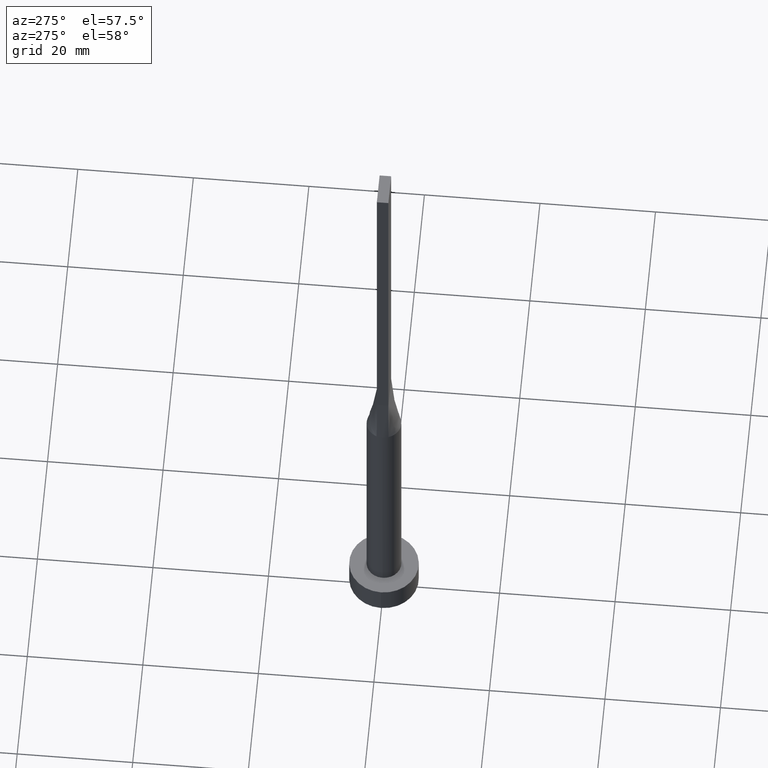
[diagram: clean part render]
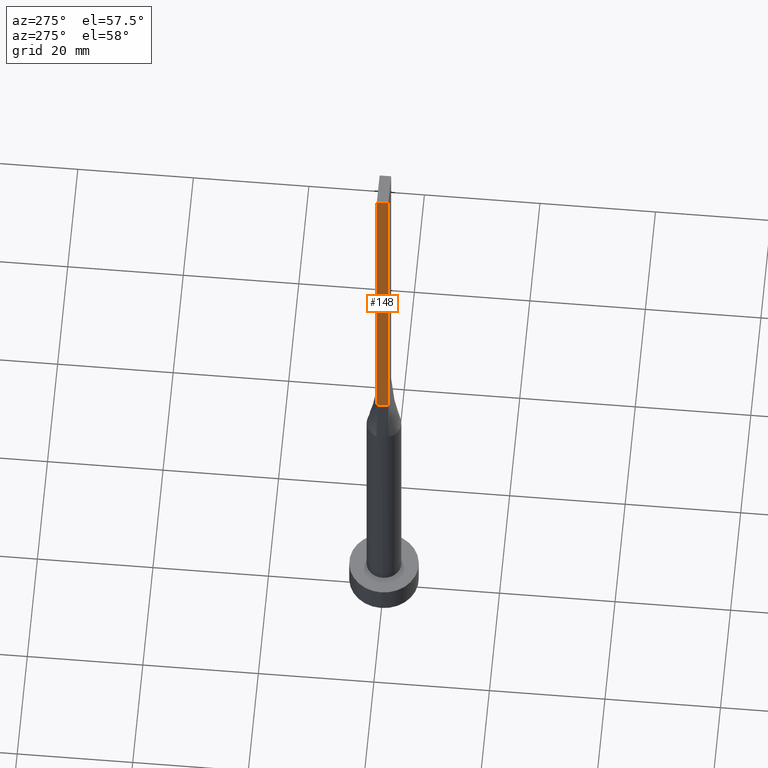
[diagram: same view with one face highlighted and labeled with its STEP entity id]
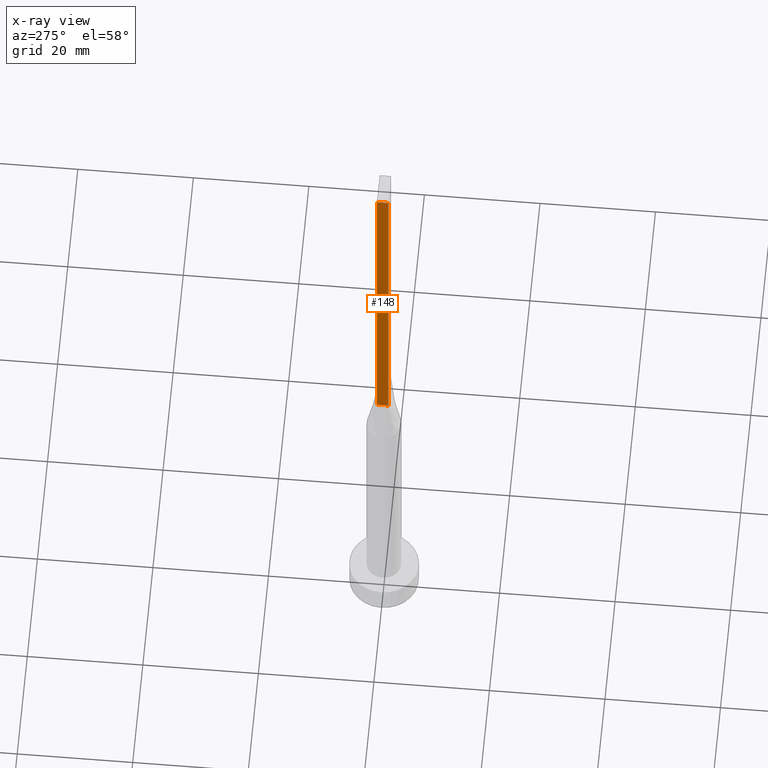
[diagram: x-ray of the same camera — body ghosted, the highlighted face saturated]
A machine part, auxiliary view. The second image highlights one B-rep face of the part: STEP entity #148.
The next image is the same camera in x-ray: the body ghosted, the highlighted face saturated — about 0% of this face is hidden behind the body in this view.
In plain terms, the highlighted planar face has unit normal (1, -0, 0).
Its self-contained STEP definition (entity closure, byte-faithful):
#13 = FACE_OUTER_BOUND ( 'NONE', #71, .T. ) ;
#34 = EDGE_CURVE ( 'NONE', #484, #295, #172, .T. ) ;
#37 = ORIENTED_EDGE ( 'NONE', *, *, #34, .T. ) ;
#53 = AXIS2_PLACEMENT_3D ( 'NONE', #460, #62, #60 ) ;
#60 = DIRECTION ( 'NONE',  ( 2.168404344971009608E-16, 1.000000000000000000, 0.000000000000000000 ) ) ;
#62 = DIRECTION ( 'NONE',  ( 1.000000000000000000, -2.168404344971009608E-16, 0.000000000000000000 ) ) ;
#71 = EDGE_LOOP ( 'NONE', ( #37, #503, #322, #260 ) ) ;
#72 = CARTESIAN_POINT ( 'NONE',  ( -2.750000000000000000, -0.9999999999999993339, 60.00000000000000000 ) ) ;
#81 = CARTESIAN_POINT ( 'NONE',  ( -2.749999999999999556, 1.000000000000000000, 60.00000000000000000 ) ) ;
#99 = DIRECTION ( 'NONE',  ( -0.000000000000000000, -0.000000000000000000, -1.000000000000000000 ) ) ;
#111 = EDGE_CURVE ( 'NONE', #253, #484, #370, .T. ) ;
#143 = VERTEX_POINT ( 'NONE', #274 ) ;
#148 = ADVANCED_FACE ( 'NONE', ( #13 ), #184, .F. ) ;
#172 = LINE ( 'NONE', #81, #439 ) ;
#179 = CARTESIAN_POINT ( 'NONE',  ( -2.749999999999999556, 1.000000000000000000, 60.00000000000000000 ) ) ;
#184 = PLANE ( 'NONE',  #53 ) ;
#243 = CARTESIAN_POINT ( 'NONE',  ( -2.749999999999999556, 1.000000000000000000, 125.0000000000000000 ) ) ;
#253 = VERTEX_POINT ( 'NONE', #243 ) ;
#256 = VECTOR ( 'NONE', #427, 1000.000000000000000 ) ;
#260 = ORIENTED_EDGE ( 'NONE', *, *, #111, .T. ) ;
#261 = DIRECTION ( 'NONE',  ( -0.000000000000000000, -0.000000000000000000, -1.000000000000000000 ) ) ;
#271 = CARTESIAN_POINT ( 'NONE',  ( -2.750000000000000000, -0.9999999999999993339, 125.0000000000000000 ) ) ;
#274 = CARTESIAN_POINT ( 'NONE',  ( -2.750000000000000000, -0.9999999999999993339, 125.0000000000000000 ) ) ;
#295 = VERTEX_POINT ( 'NONE', #72 ) ;
#322 = ORIENTED_EDGE ( 'NONE', *, *, #352, .F. ) ;
#334 = VECTOR ( 'NONE', #99, 1000.000000000000000 ) ;
#352 = EDGE_CURVE ( 'NONE', #253, #143, #355, .T. ) ;
#355 = LINE ( 'NONE', #566, #256 ) ;
#356 = DIRECTION ( 'NONE',  ( -2.168404344971009854E-16, -1.000000000000000000, 0.000000000000000000 ) ) ;
#370 = LINE ( 'NONE', #464, #334 ) ;
#423 = EDGE_CURVE ( 'NONE', #143, #295, #504, .T. ) ;
#427 = DIRECTION ( 'NONE',  ( -2.168404344971009854E-16, -1.000000000000000000, 0.000000000000000000 ) ) ;
#439 = VECTOR ( 'NONE', #356, 1000.000000000000000 ) ;
#460 = CARTESIAN_POINT ( 'NONE',  ( -2.749999999999999556, 1.000000000000000000, 125.0000000000000000 ) ) ;
#464 = CARTESIAN_POINT ( 'NONE',  ( -2.749999999999999556, 1.000000000000000000, 125.0000000000000000 ) ) ;
#484 = VERTEX_POINT ( 'NONE', #179 ) ;
#503 = ORIENTED_EDGE ( 'NONE', *, *, #423, .F. ) ;
#504 = LINE ( 'NONE', #271, #574 ) ;
#566 = CARTESIAN_POINT ( 'NONE',  ( -2.749999999999999556, 1.000000000000000000, 125.0000000000000000 ) ) ;
#574 = VECTOR ( 'NONE', #261, 1000.000000000000000 ) ;